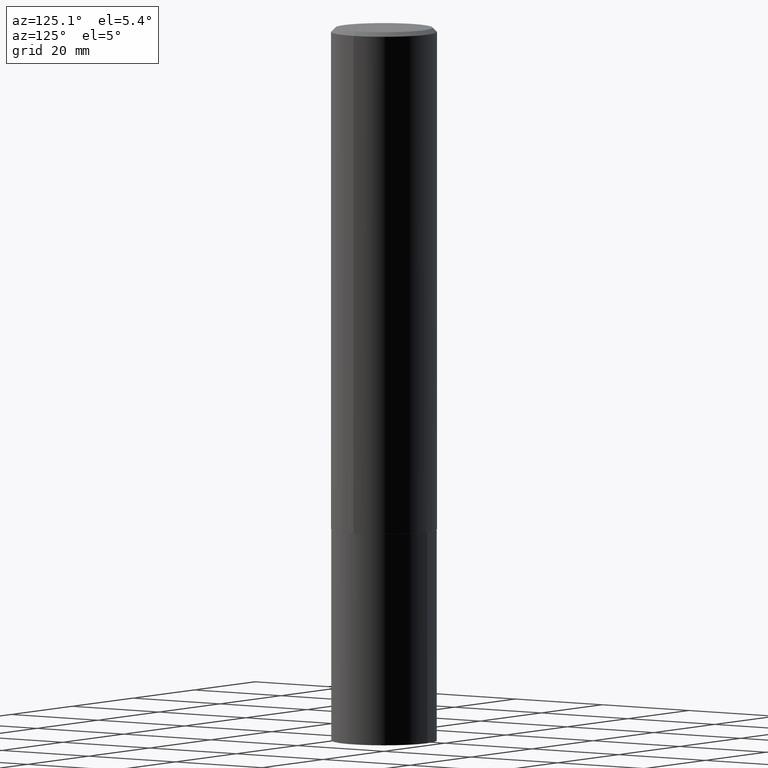
[diagram: clean part render]
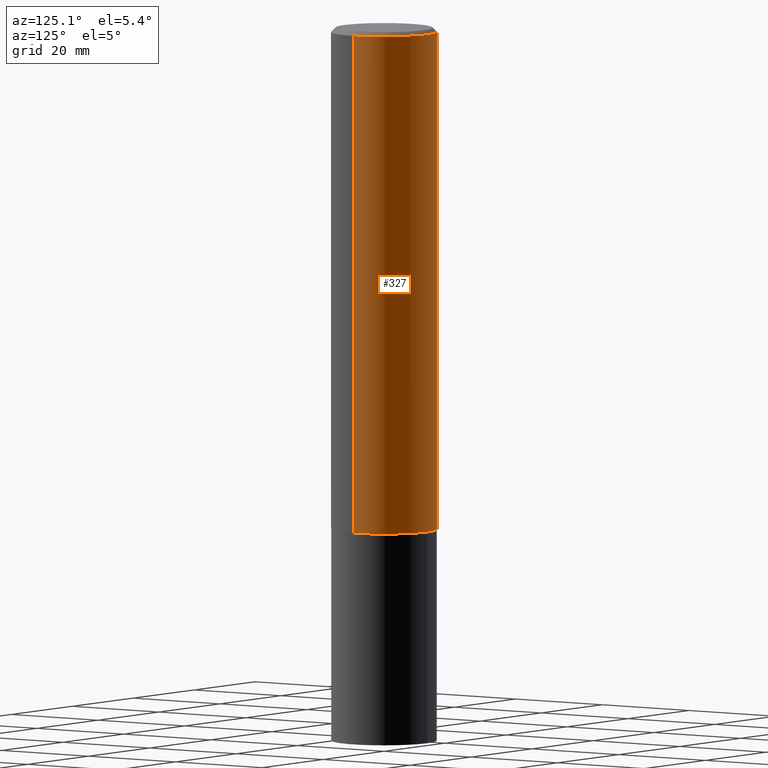
[diagram: same view with one face highlighted and labeled with its STEP entity id]
A machine part, auxiliary view. The second image highlights one B-rep face of the part: STEP entity #327.
In plain terms, the highlighted cylindrical surface (partial cylindrical patch) has radius 10 mm, axis along (-0, 0, 1).
Its self-contained STEP definition (entity closure, byte-faithful):
#7 = VECTOR ( 'NONE', #305, 39.37007874015748143 ) ;
#11 = DIRECTION ( 'NONE',  ( 1.000000000000000000, -6.982962677686265133E-15, 0.000000000000000000 ) ) ;
#29 = AXIS2_PLACEMENT_3D ( 'NONE', #162, #113, #11 ) ;
#35 = AXIS2_PLACEMENT_3D ( 'NONE', #186, #303, #141 ) ;
#40 = CIRCLE ( 'NONE', #29, 0.3937000000000004940 ) ;
#48 = VERTEX_POINT ( 'NONE', #51 ) ;
#50 = DIRECTION ( 'NONE',  ( -2.445468806185136597E-29, 3.491481338843145583E-15, 1.000000000000000000 ) ) ;
#51 = CARTESIAN_POINT ( 'NONE',  ( 0.3937000000000000499, -2.858301198043932317E-15, -0.03125000000000013184 ) ) ;
#52 = EDGE_CURVE ( 'NONE', #98, #256, #40, .T. ) ;
#56 = DIRECTION ( 'NONE',  ( 1.000000000000000000, -6.982962677686266711E-15, 4.876176775795935793E-29 ) ) ;
#90 = ORIENTED_EDGE ( 'NONE', *, *, #276, .F. ) ;
#98 = VERTEX_POINT ( 'NONE', #137 ) ;
#113 = DIRECTION ( 'NONE',  ( -2.445468806185136597E-29, 3.491481338843145583E-15, 1.000000000000000000 ) ) ;
#119 = EDGE_CURVE ( 'NONE', #256, #301, #215, .T. ) ;
#122 = EDGE_LOOP ( 'NONE', ( #147, #317, #90, #127 ) ) ;
#127 = ORIENTED_EDGE ( 'NONE', *, *, #143, .F. ) ;
#134 = CARTESIAN_POINT ( 'NONE',  ( -0.3937000000000004940, -1.025898771591642474E-14, -3.739499999999999602 ) ) ;
#137 = CARTESIAN_POINT ( 'NONE',  ( 0.3937000000000004940, -1.580558687280902827E-14, -3.739499999999999602 ) ) ;
#141 = DIRECTION ( 'NONE',  ( 1.000000000000000000, -6.982962677686265922E-15, 0.000000000000000000 ) ) ;
#143 = EDGE_CURVE ( 'NONE', #98, #48, #179, .T. ) ;
#147 = ORIENTED_EDGE ( 'NONE', *, *, #52, .T. ) ;
#149 = CIRCLE ( 'NONE', #35, 0.3937000000000000499 ) ;
#162 = CARTESIAN_POINT ( 'NONE',  ( 9.144830600729317891E-29, -1.305639446660394189E-14, -3.739499999999999602 ) ) ;
#179 = LINE ( 'NONE', #204, #292 ) ;
#186 = CARTESIAN_POINT ( 'NONE',  ( 7.642090019328584270E-31, -1.091087918388487555E-16, -0.03125000000000013184 ) ) ;
#187 = CARTESIAN_POINT ( 'NONE',  ( -0.3937000000000002164, 2.797406750687515970E-15, -1.936584745033357576E-29 ) ) ;
#195 = AXIS2_PLACEMENT_3D ( 'NONE', #284, #50, #56 ) ;
#204 = CARTESIAN_POINT ( 'NONE',  ( 0.3937000000000002164, -2.749192406205084794E-15, 1.919750796630861012E-29 ) ) ;
#215 = LINE ( 'NONE', #187, #7 ) ;
#255 = FACE_OUTER_BOUND ( 'NONE', #122, .T. ) ;
#256 = VERTEX_POINT ( 'NONE', #134 ) ;
#276 = EDGE_CURVE ( 'NONE', #48, #301, #149, .T. ) ;
#281 = CARTESIAN_POINT ( 'NONE',  ( -0.3937000000000000499, -3.785344878533878345E-15, -0.03125000000000013184 ) ) ;
#284 = CARTESIAN_POINT ( 'NONE',  ( 0.000000000000000000, 0.000000000000000000, 0.000000000000000000 ) ) ;
#292 = VECTOR ( 'NONE', #341, 39.37007874015748143 ) ;
#301 = VERTEX_POINT ( 'NONE', #281 ) ;
#303 = DIRECTION ( 'NONE',  ( -2.445468806185136597E-29, 3.491481338843145583E-15, 1.000000000000000000 ) ) ;
#305 = DIRECTION ( 'NONE',  ( -2.445468806185136877E-29, 3.491481338843145188E-15, 1.000000000000000000 ) ) ;
#306 = CYLINDRICAL_SURFACE ( 'NONE', #195, 0.3937000000000002164 ) ;
#317 = ORIENTED_EDGE ( 'NONE', *, *, #119, .T. ) ;
#327 = ADVANCED_FACE ( 'NONE', ( #255 ), #306, .T. ) ;
#341 = DIRECTION ( 'NONE',  ( -2.445468806185136877E-29, 3.491481338843145188E-15, 1.000000000000000000 ) ) ;